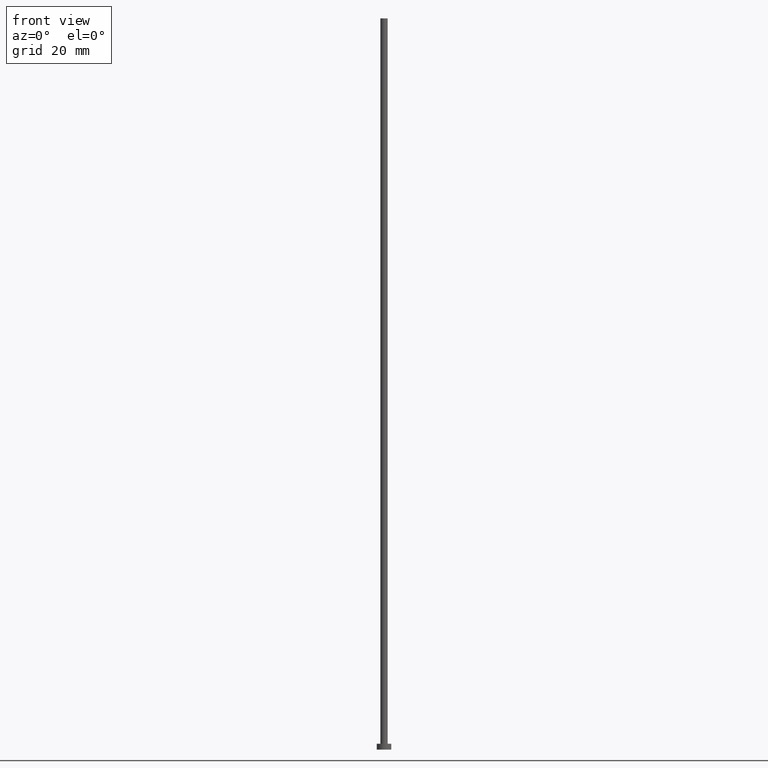
[diagram: clean part render]
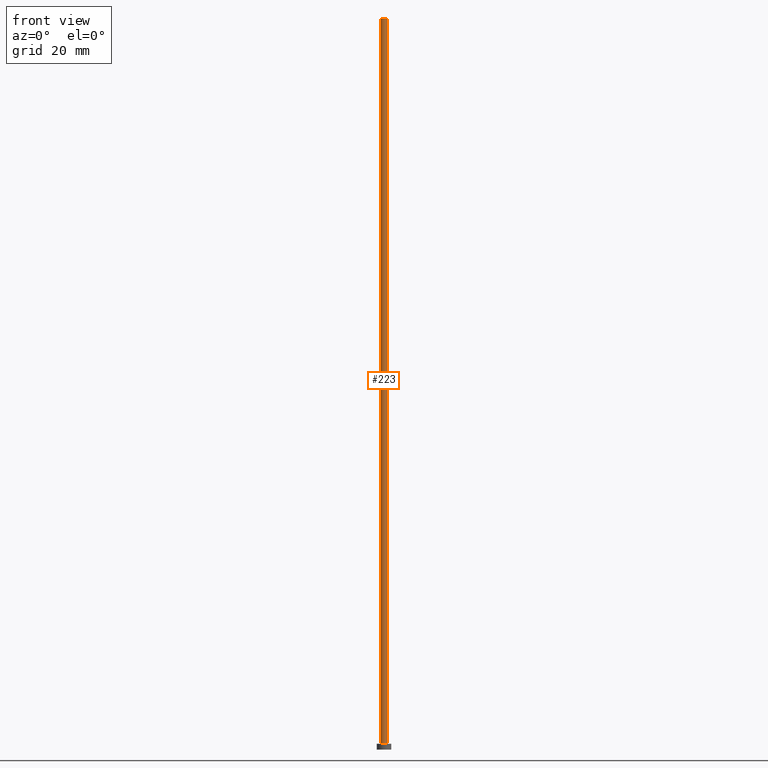
[diagram: same view with one face highlighted and labeled with its STEP entity id]
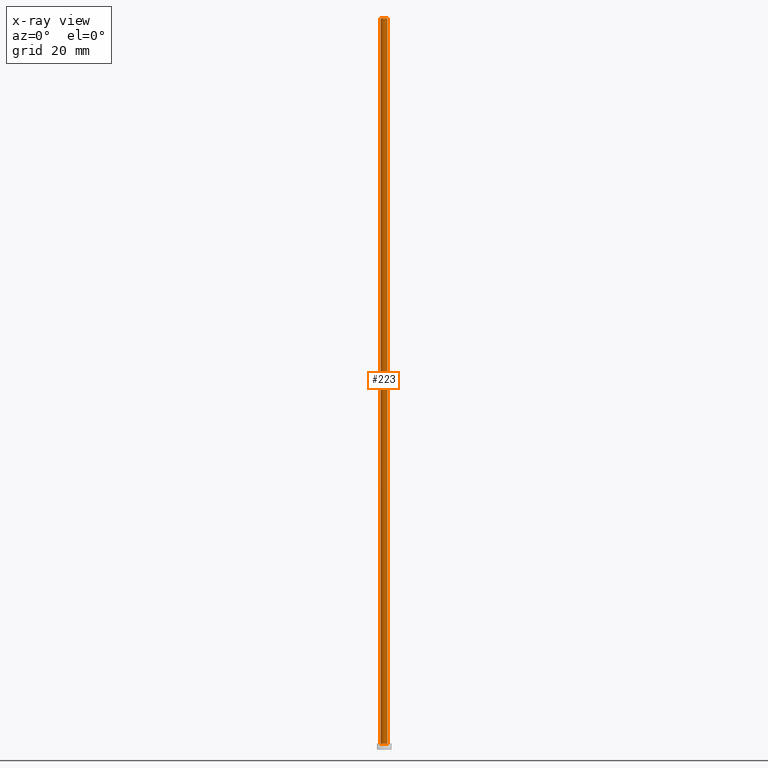
[diagram: x-ray of the same camera — body ghosted, the highlighted face saturated]
A machine part, front view. The second image highlights one B-rep face of the part: STEP entity #223.
The next image is the same camera in x-ray: the body ghosted, the highlighted face saturated — about 0% of this face is hidden behind the body in this view.
In plain terms, the highlighted cylindrical surface (edge-blend (fillet) strip) has radius 1.25 mm, axis along (-0, -0, -1).
Its self-contained STEP definition (entity closure, byte-faithful):
#6 = DIRECTION ( 'NONE',  ( 0.000000000000000000, 0.000000000000000000, 1.000000000000000000 ) ) ;
#12 = DIRECTION ( 'NONE',  ( -1.000000000000000000, 0.000000000000000000, 0.000000000000000000 ) ) ;
#14 = DIRECTION ( 'NONE',  ( -0.000000000000000000, -0.000000000000000000, -1.000000000000000000 ) ) ;
#16 = DIRECTION ( 'NONE',  ( -0.000000000000000000, -0.000000000000000000, -1.000000000000000000 ) ) ;
#18 = VERTEX_POINT ( 'NONE', #197 ) ;
#21 = CARTESIAN_POINT ( 'NONE',  ( 1.250000000000000000, 1.530808498934191571E-16, 250.0000000000000000 ) ) ;
#36 = VERTEX_POINT ( 'NONE', #21 ) ;
#40 = VERTEX_POINT ( 'NONE', #155 ) ;
#44 = LINE ( 'NONE', #65, #157 ) ;
#51 = EDGE_CURVE ( 'NONE', #36, #18, #113, .T. ) ;
#62 = CYLINDRICAL_SURFACE ( 'NONE', #230, 1.250000000000000000 ) ;
#64 = AXIS2_PLACEMENT_3D ( 'NONE', #132, #119, #91 ) ;
#65 = CARTESIAN_POINT ( 'NONE',  ( -1.250000000000000000, 0.000000000000000000, 250.0000000000000000 ) ) ;
#66 = EDGE_CURVE ( 'NONE', #40, #36, #178, .T. ) ;
#83 = EDGE_LOOP ( 'NONE', ( #148, #227, #192, #218 ) ) ;
#91 = DIRECTION ( 'NONE',  ( 1.000000000000000000, 0.000000000000000000, 0.000000000000000000 ) ) ;
#100 = CARTESIAN_POINT ( 'NONE',  ( 0.000000000000000000, 0.000000000000000000, 250.0000000000000000 ) ) ;
#102 = CIRCLE ( 'NONE', #64, 1.250000000000000000 ) ;
#103 = CARTESIAN_POINT ( 'NONE',  ( -1.250000000000000000, 0.000000000000000000, 2.000000000000000000 ) ) ;
#111 = DIRECTION ( 'NONE',  ( 1.000000000000000000, 0.000000000000000000, 0.000000000000000000 ) ) ;
#113 = LINE ( 'NONE', #236, #176 ) ;
#118 = AXIS2_PLACEMENT_3D ( 'NONE', #100, #6, #111 ) ;
#119 = DIRECTION ( 'NONE',  ( 0.000000000000000000, 0.000000000000000000, 1.000000000000000000 ) ) ;
#132 = CARTESIAN_POINT ( 'NONE',  ( 0.000000000000000000, 0.000000000000000000, 2.000000000000000000 ) ) ;
#148 = ORIENTED_EDGE ( 'NONE', *, *, #51, .F. ) ;
#155 = CARTESIAN_POINT ( 'NONE',  ( -1.250000000000000000, 0.000000000000000000, 250.0000000000000000 ) ) ;
#156 = EDGE_CURVE ( 'NONE', #217, #18, #102, .T. ) ;
#157 = VECTOR ( 'NONE', #241, 1000.000000000000000 ) ;
#164 = EDGE_CURVE ( 'NONE', #40, #217, #44, .T. ) ;
#176 = VECTOR ( 'NONE', #16, 1000.000000000000000 ) ;
#178 = CIRCLE ( 'NONE', #118, 1.250000000000000000 ) ;
#188 = FACE_OUTER_BOUND ( 'NONE', #83, .T. ) ;
#192 = ORIENTED_EDGE ( 'NONE', *, *, #164, .T. ) ;
#197 = CARTESIAN_POINT ( 'NONE',  ( 1.250000000000000000, 1.530808498934191571E-16, 2.000000000000000000 ) ) ;
#217 = VERTEX_POINT ( 'NONE', #103 ) ;
#218 = ORIENTED_EDGE ( 'NONE', *, *, #156, .T. ) ;
#223 = ADVANCED_FACE ( 'NONE', ( #188 ), #62, .T. ) ;
#227 = ORIENTED_EDGE ( 'NONE', *, *, #66, .F. ) ;
#230 = AXIS2_PLACEMENT_3D ( 'NONE', #234, #14, #12 ) ;
#234 = CARTESIAN_POINT ( 'NONE',  ( 0.000000000000000000, 0.000000000000000000, 250.0000000000000000 ) ) ;
#236 = CARTESIAN_POINT ( 'NONE',  ( 1.250000000000000000, 1.530808498934191571E-16, 250.0000000000000000 ) ) ;
#241 = DIRECTION ( 'NONE',  ( -0.000000000000000000, -0.000000000000000000, -1.000000000000000000 ) ) ;